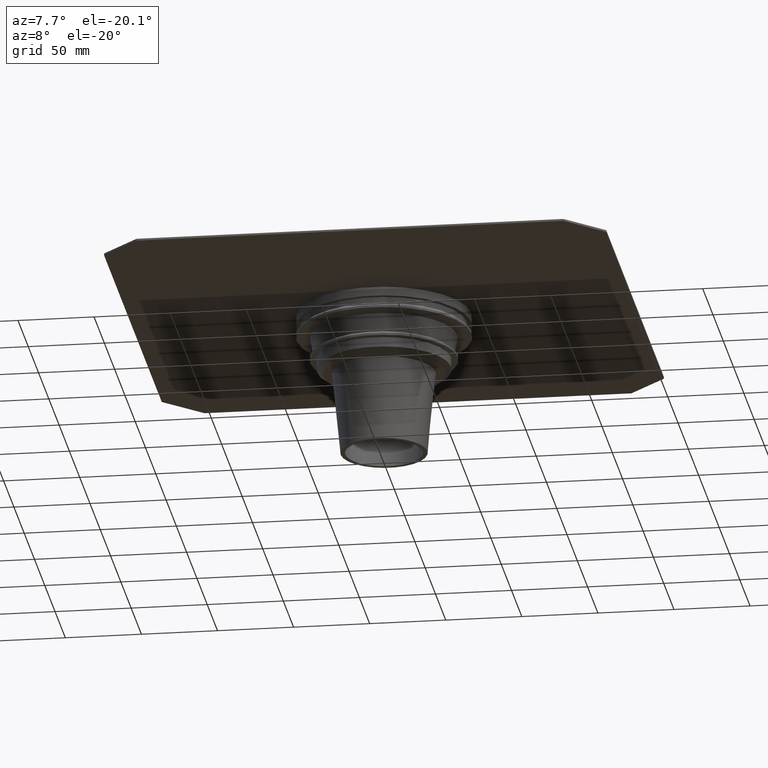
[diagram: clean part render]
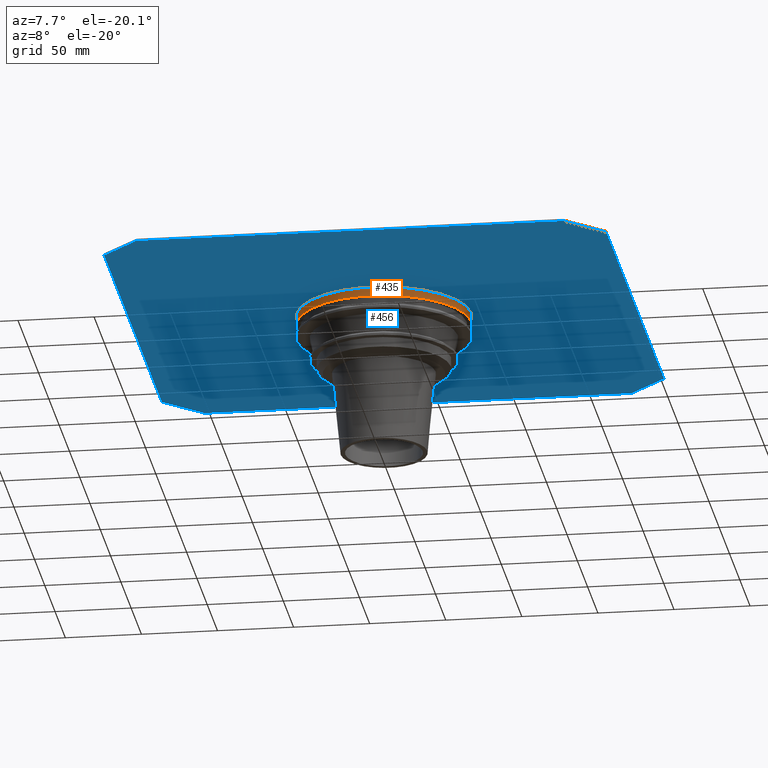
[diagram: same view with the hole feature highlighted: cylindrical wall and planar end face, labeled with their STEP entity ids]
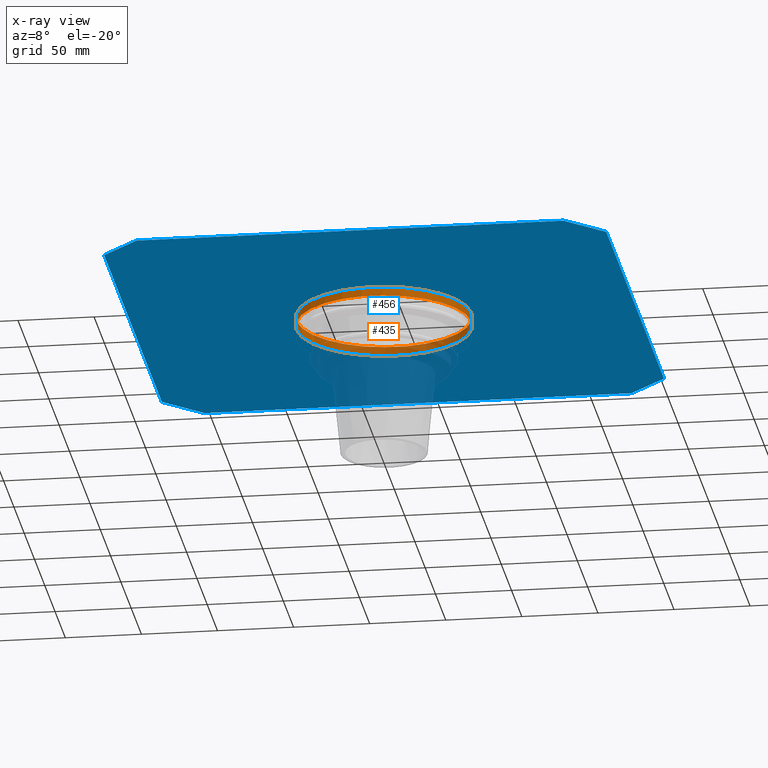
[diagram: x-ray of the same camera — body ghosted, the hole faces saturated]
A machine part, auxiliary view. The highlighted faces form one hole feature of diameter 115 mm: the cylindrical wall (entity #435, orange) and its adjacent planar end face (entity #456, blue) — they share a circular edge in the B-rep.
The next image is the same camera in x-ray (body ghosted, the hole faces saturated) — the bore reads through the body.
Wall:
#31=CIRCLE('',#483,57.5);
#33=CIRCLE('',#486,57.5);
#54=CYLINDRICAL_SURFACE('',#485,57.5);
#96=ORIENTED_EDGE('',*,*,#184,.T.);
#97=ORIENTED_EDGE('',*,*,#182,.F.);
#182=EDGE_CURVE('',#222,#222,#31,.T.);
#184=EDGE_CURVE('',#224,#224,#33,.F.);
#222=VERTEX_POINT('',#724);
#224=VERTEX_POINT('',#729);
#304=EDGE_LOOP('',(#96));
#305=EDGE_LOOP('',(#97));
#362=FACE_BOUND('',#304,.T.);
#363=FACE_BOUND('',#305,.T.);
#435=ADVANCED_FACE('',(#362,#363),#54,.T.);
#483=AXIS2_PLACEMENT_3D('',#723,#578,#579);
#485=AXIS2_PLACEMENT_3D('',#727,#582,#583);
#486=AXIS2_PLACEMENT_3D('',#728,#584,#585);
#578=DIRECTION('',(0.,0.,-1.));
#579=DIRECTION('',(-1.,0.,0.));
#582=DIRECTION('',(0.,0.,-1.));
#583=DIRECTION('',(-1.,0.,0.));
#584=DIRECTION('',(0.,0.,1.));
#585=DIRECTION('',(1.,0.,0.));
#723=CARTESIAN_POINT('',(0.,0.,-6.));
#724=CARTESIAN_POINT('',(-57.5,0.,-6.));
#727=CARTESIAN_POINT('',(0.,0.,-50.));
#728=CARTESIAN_POINT('',(0.,0.,0.));
#729=CARTESIAN_POINT('',(57.5,0.,0.));
End face:
#33=CIRCLE('',#486,57.5);
#138=ORIENTED_EDGE('',*,*,#184,.F.);
#139=ORIENTED_EDGE('',*,*,#158,.F.);
#140=ORIENTED_EDGE('',*,*,#181,.F.);
#141=ORIENTED_EDGE('',*,*,#176,.F.);
#142=ORIENTED_EDGE('',*,*,#173,.F.);
#143=ORIENTED_EDGE('',*,*,#170,.F.);
#144=ORIENTED_EDGE('',*,*,#167,.F.);
#145=ORIENTED_EDGE('',*,*,#164,.F.);
#146=ORIENTED_EDGE('',*,*,#161,.F.);
#158=EDGE_CURVE('',#206,#207,#246,.T.);
#161=EDGE_CURVE('',#207,#209,#249,.T.);
#164=EDGE_CURVE('',#209,#211,#252,.T.);
#167=EDGE_CURVE('',#211,#213,#255,.T.);
#170=EDGE_CURVE('',#213,#215,#258,.T.);
#173=EDGE_CURVE('',#215,#217,#261,.T.);
#176=EDGE_CURVE('',#217,#219,#264,.T.);
#181=EDGE_CURVE('',#219,#206,#267,.T.);
#184=EDGE_CURVE('',#224,#224,#33,.F.);
#206=VERTEX_POINT('',#674);
#207=VERTEX_POINT('',#676);
#209=VERTEX_POINT('',#682);
#211=VERTEX_POINT('',#688);
#213=VERTEX_POINT('',#694);
#215=VERTEX_POINT('',#700);
#217=VERTEX_POINT('',#706);
#219=VERTEX_POINT('',#712);
#224=VERTEX_POINT('',#729);
#246=LINE('',#675,#270);
#249=LINE('',#681,#273);
#252=LINE('',#687,#276);
#255=LINE('',#693,#279);
#258=LINE('',#699,#282);
#261=LINE('',#705,#285);
#264=LINE('',#711,#288);
#267=LINE('',#721,#291);
#270=VECTOR('',#534,1000.);
#273=VECTOR('',#539,1000.);
#276=VECTOR('',#544,1000.);
#279=VECTOR('',#549,1000.);
#282=VECTOR('',#554,1000.);
#285=VECTOR('',#559,1000.);
#288=VECTOR('',#564,1000.);
#291=VECTOR('',#575,1000.);
#346=EDGE_LOOP('',(#138));
#347=EDGE_LOOP('',(#139,#140,#141,#142,#143,#144,#145,#146));
#404=FACE_BOUND('',#346,.T.);
#405=FACE_BOUND('',#347,.T.);
#423=PLANE('',#526);
#456=ADVANCED_FACE('',(#404,#405),#423,.F.);
#486=AXIS2_PLACEMENT_3D('',#728,#584,#585);
#526=AXIS2_PLACEMENT_3D('',#788,#664,#665);
#534=DIRECTION('',(0.,-1.,0.));
#539=DIRECTION('',(0.707106781186547,-0.707106781186547,0.));
#544=DIRECTION('',(1.,0.,0.));
#549=DIRECTION('',(0.707106781186547,0.707106781186547,0.));
#554=DIRECTION('',(0.,1.,0.));
#559=DIRECTION('',(-0.707106781186547,0.707106781186547,0.));
#564=DIRECTION('',(-1.,0.,0.));
#575=DIRECTION('',(-0.707106781186547,-0.707106781186547,0.));
#584=DIRECTION('',(0.,0.,1.));
#585=DIRECTION('',(1.,0.,0.));
#664=DIRECTION('',(0.,0.,1.));
#665=DIRECTION('',(1.,0.,0.));
#674=CARTESIAN_POINT('',(-165.,140.251262658471,0.));
#675=CARTESIAN_POINT('',(-165.,140.251262658471,0.));
#676=CARTESIAN_POINT('',(-165.,-140.251262658471,0.));
#681=CARTESIAN_POINT('',(-165.,-140.251262658471,0.));
#682=CARTESIAN_POINT('',(-140.251262658471,-165.,0.));
#687=CARTESIAN_POINT('',(-140.251262658471,-165.,0.));
#688=CARTESIAN_POINT('',(140.251262658471,-165.,0.));
#693=CARTESIAN_POINT('',(140.251262658471,-165.,0.));
#694=CARTESIAN_POINT('',(165.,-140.251262658471,0.));
#699=CARTESIAN_POINT('',(165.,-140.251262658471,0.));
#700=CARTESIAN_POINT('',(165.,140.251262658471,0.));
#705=CARTESIAN_POINT('',(165.,140.251262658471,0.));
#706=CARTESIAN_POINT('',(140.251262658471,165.,0.));
#711=CARTESIAN_POINT('',(140.251262658471,165.,0.));
#712=CARTESIAN_POINT('',(-140.251262658471,165.,0.));
#721=CARTESIAN_POINT('',(-140.251262658471,165.,0.));
#728=CARTESIAN_POINT('',(0.,0.,0.));
#729=CARTESIAN_POINT('',(57.5,0.,0.));
#788=CARTESIAN_POINT('',(0.,0.,0.));